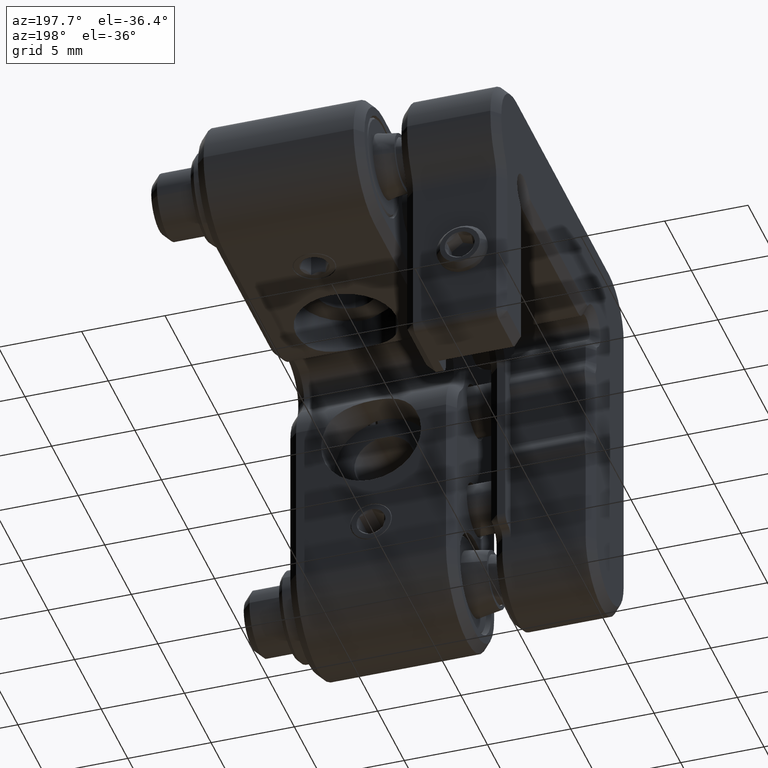
[diagram: clean part render]
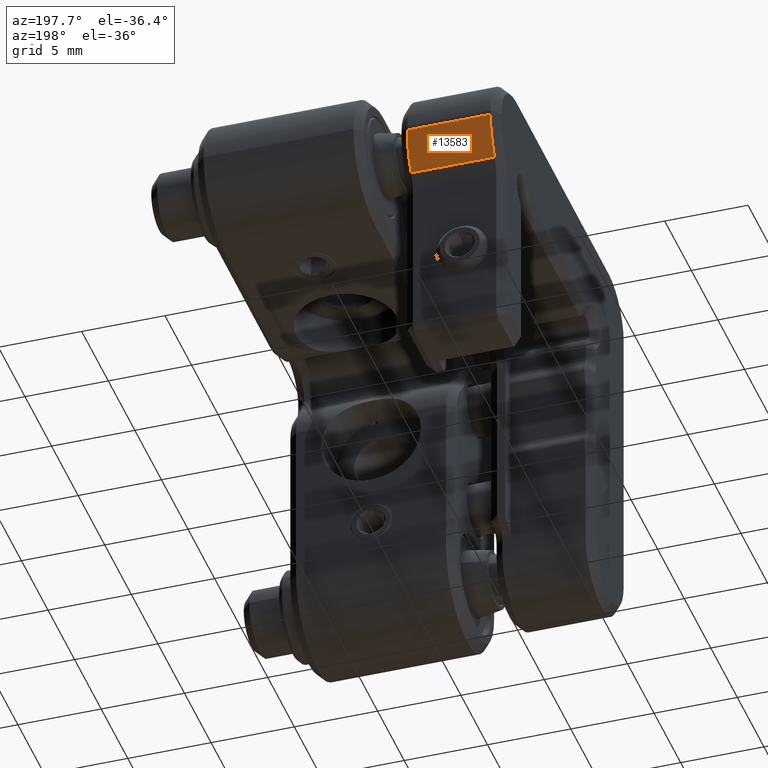
[diagram: same view with one face highlighted and labeled with its STEP entity id]
A machine part, auxiliary view. The second image highlights one B-rep face of the part: STEP entity #13583.
In plain terms, the highlighted cylindrical surface (partial cylindrical patch) has radius 4.5 mm, axis along (-1, 0, 0).
Its self-contained STEP definition (entity closure, byte-faithful):
#500 = CARTESIAN_POINT ( 'NONE',  ( 10.34741132874042258, 20.20000000000000995, -2.852119405403258146 ) ) ;
#955 = LINE ( 'NONE', #11245, #8709 ) ;
#1610 = VERTEX_POINT ( 'NONE', #2775 ) ;
#2775 = CARTESIAN_POINT ( 'NONE',  ( 15.34741132874041192, 24.70000000000000639, -2.852119405403254593 ) ) ;
#3154 = CIRCLE ( 'NONE', #5498, 4.500000000000000000 ) ;
#3858 = ORIENTED_EDGE ( 'NONE', *, *, #16750, .T. ) ;
#4049 = VERTEX_POINT ( 'NONE', #15081 ) ;
#4411 = CYLINDRICAL_SURFACE ( 'NONE', #18044, 4.500000000000000000 ) ;
#5220 = DIRECTION ( 'NONE',  ( 0.0000000000000000000, 3.083952846180990478E-15, 1.000000000000000000 ) ) ;
#5498 = AXIS2_PLACEMENT_3D ( 'NONE', #500, #12855, #16454 ) ;
#5569 = LINE ( 'NONE', #19103, #21778 ) ;
#5832 = DIRECTION ( 'NONE',  ( 0.0000000000000000000, 0.0000000000000000000, -1.000000000000000000 ) ) ;
#5959 = CARTESIAN_POINT ( 'NONE',  ( 15.84743632874041630, 20.20000000000000995, -2.852119405403258146 ) ) ;
#6174 = VERTEX_POINT ( 'NONE', #19056 ) ;
#6899 = EDGE_CURVE ( 'NONE', #4049, #6174, #955, .T. ) ;
#7898 = DIRECTION ( 'NONE',  ( 1.000000000000000000, -0.0000000000000000000, -0.0000000000000000000 ) ) ;
#8709 = VECTOR ( 'NONE', #7898, 1000.000000000000000 ) ;
#11198 = EDGE_CURVE ( 'NONE', #19649, #4049, #3154, .T. ) ;
#11245 = CARTESIAN_POINT ( 'NONE',  ( 15.84743632874041630, 23.93846153846154579, -5.356895907497563947 ) ) ;
#12142 = EDGE_CURVE ( 'NONE', #6174, #1610, #17568, .T. ) ;
#12563 = AXIS2_PLACEMENT_3D ( 'NONE', #15659, #20859, #5220 ) ;
#12720 = DIRECTION ( 'NONE',  ( -1.000000000000000000, 0.0000000000000000000, 0.0000000000000000000 ) ) ;
#12855 = DIRECTION ( 'NONE',  ( -1.000000000000000000, -0.0000000000000000000, -0.0000000000000000000 ) ) ;
#13583 = ADVANCED_FACE ( 'NONE', ( #19525 ), #4411, .T. ) ;
#15081 = CARTESIAN_POINT ( 'NONE',  ( 10.34741132874042258, 23.93846153846154579, -5.356895907497563947 ) ) ;
#15659 = CARTESIAN_POINT ( 'NONE',  ( 15.34741132874041192, 20.20000000000000995, -2.852119405403258146 ) ) ;
#15732 = CARTESIAN_POINT ( 'NONE',  ( 10.34741132874042258, 24.70000000000000639, -2.852119405403254593 ) ) ;
#16454 = DIRECTION ( 'NONE',  ( 0.0000000000000000000, 0.0000000000000000000, 1.000000000000000000 ) ) ;
#16750 = EDGE_CURVE ( 'NONE', #19649, #1610, #5569, .T. ) ;
#17568 = CIRCLE ( 'NONE', #12563, 4.500000000000000000 ) ;
#17751 = ORIENTED_EDGE ( 'NONE', *, *, #12142, .F. ) ;
#18044 = AXIS2_PLACEMENT_3D ( 'NONE', #5959, #12720, #5832 ) ;
#19056 = CARTESIAN_POINT ( 'NONE',  ( 15.34741132874041192, 23.93846153846154579, -5.356895907497563947 ) ) ;
#19103 = CARTESIAN_POINT ( 'NONE',  ( 15.84741132874041547, 24.70000000000000639, -2.852119405403254593 ) ) ;
#19525 = FACE_OUTER_BOUND ( 'NONE', #20931, .T. ) ;
#19649 = VERTEX_POINT ( 'NONE', #15732 ) ;
#20859 = DIRECTION ( 'NONE',  ( 1.000000000000000000, 0.0000000000000000000, 0.0000000000000000000 ) ) ;
#20931 = EDGE_LOOP ( 'NONE', ( #21133, #21183, #3858, #17751 ) ) ;
#21133 = ORIENTED_EDGE ( 'NONE', *, *, #6899, .F. ) ;
#21183 = ORIENTED_EDGE ( 'NONE', *, *, #11198, .F. ) ;
#21778 = VECTOR ( 'NONE', #22846, 1000.000000000000000 ) ;
#22846 = DIRECTION ( 'NONE',  ( 1.000000000000000000, -0.0000000000000000000, -0.0000000000000000000 ) ) ;